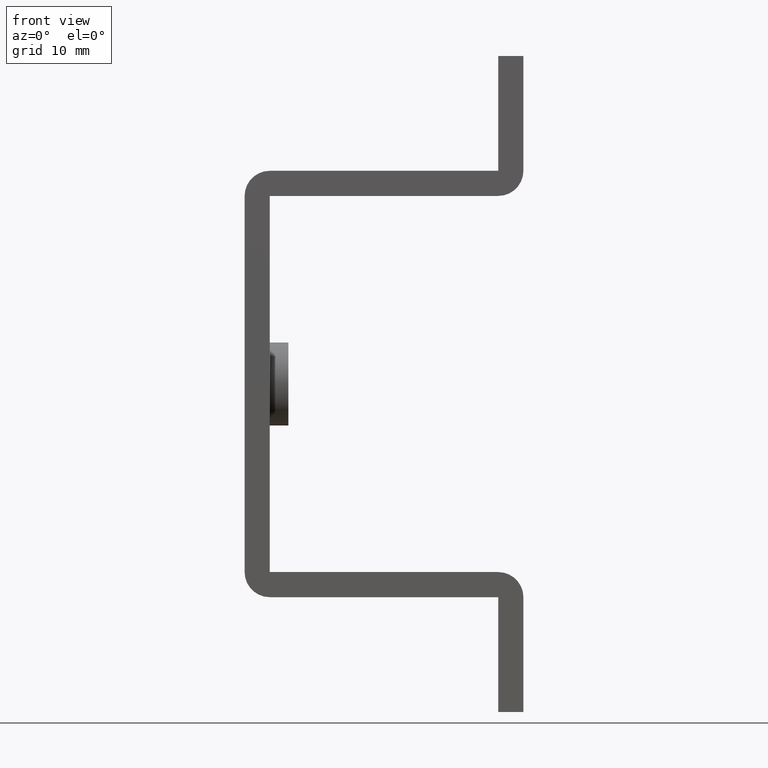
[diagram: clean part render]
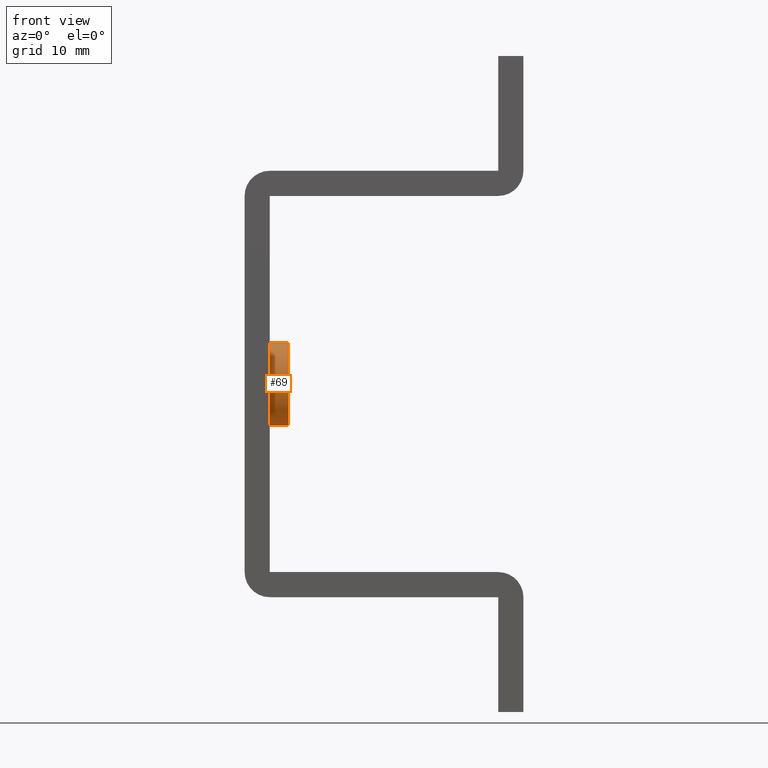
[diagram: same view with one face highlighted and labeled with its STEP entity id]
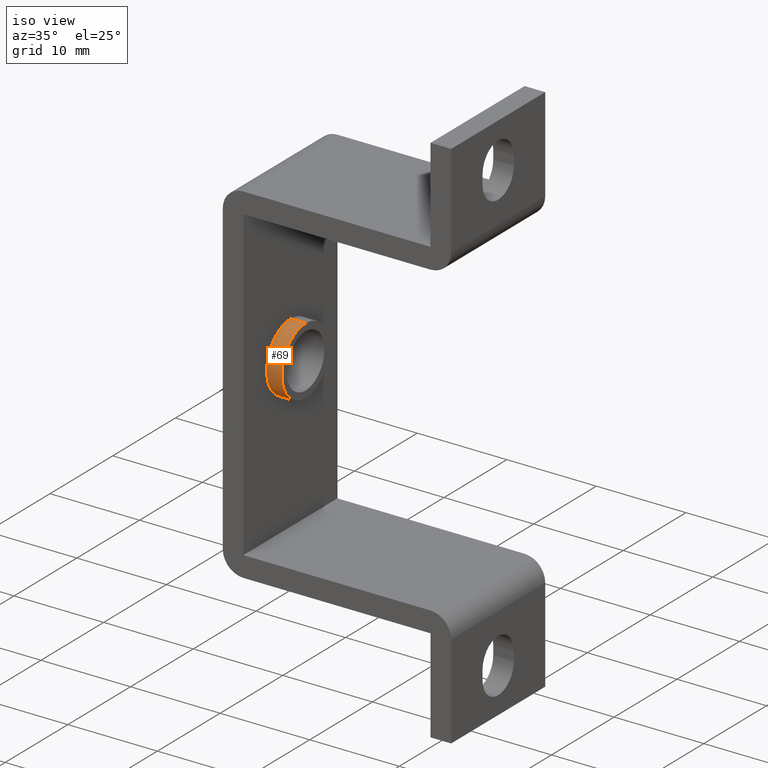
[diagram: same view with one face highlighted and labeled with its STEP entity id]
A machine part, front view. The second image highlights one B-rep face of the part: STEP entity #69.
A second angle (iso view) of the same face is appended — the face is thin or edge-on in the first view.
In plain terms, the highlighted cylindrical surface (partial cylindrical patch) has radius 3.8 mm, axis along (-1, -0, 0).
Its self-contained STEP definition (entity closure, byte-faithful):
#69=ADVANCED_FACE('',(#371),#370,.T.);
#370=CYLINDRICAL_SURFACE('',#565,3.80000000000E+00);
#371=FACE_OUTER_BOUND('',#566,.T.);
#562=CARTESIAN_POINT('',(-2.00500001907E+01,-7.50000000000E+00,3.00000000000E+01));
#563=DIRECTION('',(-1.00000000000E+00,-0.00000000000E+00,0.00000000000E+00));
#564=DIRECTION('',(0.00000000000E+00,1.22464679915E-16,-1.00000000000E+00));
#565=AXIS2_PLACEMENT_3D('',#562,#563,#564);
#566=EDGE_LOOP('',(#784,#785,#786,#787));
#784=ORIENTED_EDGE('',*,*,#869,.F.);
#785=ORIENTED_EDGE('',*,*,#884,.F.);
#786=ORIENTED_EDGE('',*,*,#800,.T.);
#787=ORIENTED_EDGE('',*,*,#885,.T.);
#800=EDGE_CURVE('',#888,#889,#890,.T.);
#869=EDGE_CURVE('',#1355,#1356,#1357,.T.);
#884=EDGE_CURVE('',#888,#1355,#1450,.T.);
#885=EDGE_CURVE('',#889,#1356,#1456,.T.);
#888=VERTEX_POINT('',#1474);
#889=VERTEX_POINT('',#1475);
#890=CIRCLE('',#1479,3.80000000000E+00);
#1355=VERTEX_POINT('',#1755);
#1356=VERTEX_POINT('',#1756);
#1357=CIRCLE('',#1760,3.80000000000E+00);
#1450=(BOUNDED_CURVE() B_SPLINE_CURVE(1,(#1808,#1809),.UNSPECIFIED.,.F.,.F.) B_SPLINE_CURVE_WITH_KNOTS((2,2),(8.33333134656E-02,9.16666653270E-01),.UNSPECIFIED.) CURVE() GEOMETRIC_REPRESENTATION_ITEM() RATIONAL_B_SPLINE_CURVE((1.00000000000E+00,1.00000000000E+00)) REPRESENTATION_ITEM('') );
#1456=(BOUNDED_CURVE() B_SPLINE_CURVE(1,(#1810,#1811),.UNSPECIFIED.,.F.,.F.) B_SPLINE_CURVE_WITH_KNOTS((2,2),(8.33333333333E-02,9.16666666667E-01),.UNSPECIFIED.) CURVE() GEOMETRIC_REPRESENTATION_ITEM() RATIONAL_B_SPLINE_CURVE((7.50000000000E-01,7.50000000000E-01)) REPRESENTATION_ITEM('') );
#1474=CARTESIAN_POINT('',(-1.92000000000E+01,-7.50000000000E+00,2.62000000000E+01));
#1475=CARTESIAN_POINT('',(-1.92000000000E+01,-7.50000000000E+00,3.38000000000E+01));
#1476=CARTESIAN_POINT('',(-1.92000000000E+01,-7.50000000000E+00,3.00000000000E+01));
#1477=DIRECTION('',(-1.00000000000E+00,0.00000000000E+00,0.00000000000E+00));
#1478=DIRECTION('',(-0.00000000000E+00,-0.00000000000E+00,1.00000000000E+00));
#1479=AXIS2_PLACEMENT_3D('',#1476,#1477,#1478);
#1755=CARTESIAN_POINT('',(-2.09000000000E+01,-7.50000000000E+00,2.62000000000E+01));
#1756=CARTESIAN_POINT('',(-2.09000000000E+01,-7.50000000000E+00,3.38000000000E+01));
#1757=CARTESIAN_POINT('',(-2.09000000000E+01,-7.50000000000E+00,3.00000000000E+01));
#1758=DIRECTION('',(-1.00000000000E+00,0.00000000000E+00,0.00000000000E+00));
#1759=DIRECTION('',(-0.00000000000E+00,-0.00000000000E+00,-1.00000000000E+00));
#1760=AXIS2_PLACEMENT_3D('',#1757,#1758,#1759);
#1808=CARTESIAN_POINT('',(-1.91999999595E+01,-7.50000000000E+00,2.62000000000E+01));
#1809=CARTESIAN_POINT('',(-2.08999999727E+01,-7.50000000000E+00,2.62000000000E+01));
#1810=CARTESIAN_POINT('',(-1.92000000000E+01,-7.50000000000E+00,3.38000000000E+01));
#1811=CARTESIAN_POINT('',(-2.09000000000E+01,-7.50000000000E+00,3.38000000000E+01));